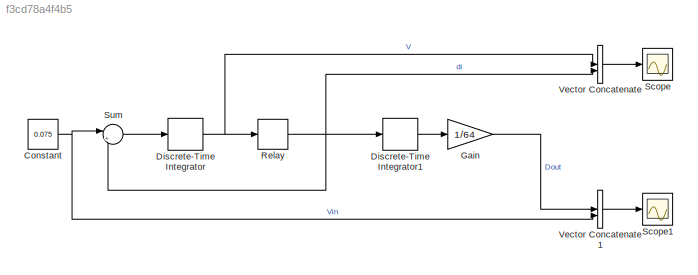
MODEL slx_f3cd78a4f4b5
KIND model
CONFIG AbsTol = auto
CONFIG EnableMultiTasking = off
CONFIG FixedStep = 1
CONFIG MaxStep = auto
CONFIG MinStep = auto
CONFIG RelTol = 1e-3
CONFIG SampleTimeConstraint = Unconstrained
CONFIG SolverName = FixedStepDiscrete
CONFIG StartTime = 0.0
CONFIG StopTime = 64
BLOCK [Constant] Constant
  Value = 0.075
BLOCK [DiscreteIntegrator] Discrete-Time Integrator
  ICPrevOutput = DiscIntNeverNeededParam
  ICPrevScaledInput = DiscIntNeverNeededParam
  InitialConditionSetting = Auto
  IntegratorMethod = Accumulation: Forward Euler
  SampleTime = -1
BLOCK [DiscreteIntegrator] Discrete-Time Integrator1
  ICPrevOutput = DiscIntNeverNeededParam
  ICPrevScaledInput = DiscIntNeverNeededParam
  InitialConditionSetting = Auto
  IntegratorMethod = Accumulation: Backward Euler
  SampleTime = -1
BLOCK [Gain] Gain
  Gain = 1/64
BLOCK [Relay] Relay
BLOCK [Scope] Scope
  Floating = off
  NumInputPorts = 1
  ScopeSpecificationString = Simulink.scopes.TimeScopeBlockCfg('CurrentConfiguration', extmgr.ConfigurationSet(extmgr.Configuration('Core','General UI',true),extmgr.Configuration('Core','Source UI',true),extmgr.Configuration('Sources','WiredSimulink',true),extmgr.Configuration('Visuals','Time Domain',true,'SerializedDisplays',{struct('MinYLimReal','-1.1375','MaxYLimReal','1.2375','YLabelReal','','MinYLimMag','0.00000','MaxYLi...<+1374ch>
BLOCK [Scope] Scope1
  Floating = off
  NumInputPorts = 1
  ScopeSpecificationString = Simulink.scopes.TimeScopeBlockCfg('CurrentConfiguration', extmgr.ConfigurationSet(extmgr.Configuration('Core','General UI',true),extmgr.Configuration('Core','Source UI',true),extmgr.Configuration('Sources','WiredSimulink',true,'DataLoggingVariableName','ScopeData1'),extmgr.Configuration('Visuals','Time Domain',true,'SerializedDisplays',{struct('MinYLimReal','-0.00977','MaxYLimReal','0.08789','YLab...<+1435ch>
BLOCK [Sum] Sum
  Inputs = |+-
BLOCK [Concatenate] Vector Concatenate
BLOCK [Concatenate] Vector Concatenate1
NET Constant:1 -> Sum:1, Vector Concatenate1:2
LINE Discrete-Time Integrator1:1 -> Gain:1
NET Discrete-Time Integrator:1 -> Relay:1, Vector Concatenate:1
LINE Gain:1 -> Vector Concatenate1:1
NET Relay:1 -> Discrete-Time Integrator1:1, Sum:2, Vector Concatenate:2
LINE Sum:1 -> Discrete-Time Integrator:1
LINE Vector Concatenate1:1 -> Scope1:1
LINE Vector Concatenate:1 -> Scope:1
note: NET lines group one-source signal fan-out (src -> all destinations, sorted); 1:1 wires keep LINE
